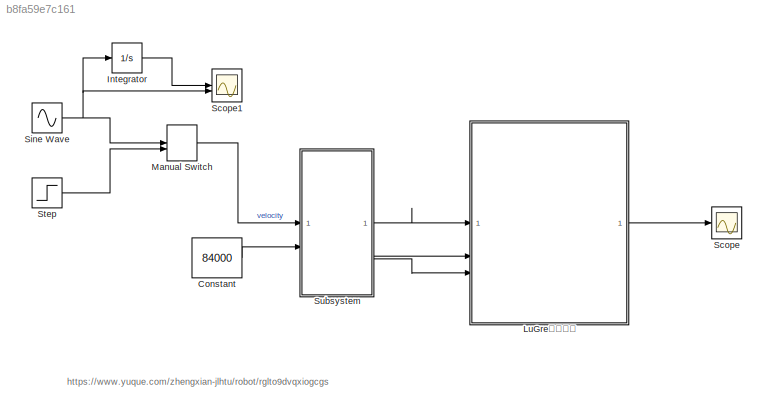
MODEL slx_b8fa59e7c161
KIND model
CONFIG AbsTol = auto
CONFIG EnableMultiTasking = off
CONFIG FixedStep = auto
CONFIG MaxStep = auto
CONFIG MinStep = auto
CONFIG RelTol = 1e-3
CONFIG SampleTimeConstraint = Unconstrained
CONFIG SolverName = VariableStepAuto
CONFIG StartTime = 0.0
CONFIG StopTime = 10.0
BLOCK [Constant] Constant
  Value = 84000
BLOCK [Integrator] Integrator
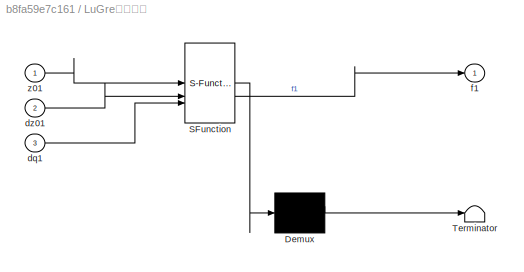
BLOCK [SubSystem] LuGre摩擦模型
  ErrorFcn = Stateflow.Translate.translate
  NameLocation = top
  PermitHierarchicalResolution = ExplicitOnly
  SFBlockType = MATLAB Function
  TreatAsAtomicUnit = on
BLOCK [Demux] LuGre摩擦模型/ Demux 
  Outputs = 1
BLOCK [S-Function] LuGre摩擦模型/ SFunction 
  EnableBusSupport = on
  FunctionName = sf_sfun
  PortCounts = [3 2]
  SFcnIsStateOwnerBlock = off
  SFunctionDeploymentMode = off
  Tag = Stateflow S-Function 7
BLOCK [Terminator] LuGre摩擦模型/ Terminator 
BLOCK [Inport] LuGre摩擦模型/dq1
  Port = 3
BLOCK [Inport] LuGre摩擦模型/dz01
  Port = 2
BLOCK [Outport] LuGre摩擦模型/f1
BLOCK [Inport] LuGre摩擦模型/z01
BLOCK [ManualSwitch] Manual Switch
BLOCK [Scope] Scope
  Floating = off
  NumInputPorts = 1
  ScopeSpecificationString = Simulink.scopes.TimeScopeBlockCfg('CurrentConfiguration', extmgr.ConfigurationSet(extmgr.Configuration('Core','General UI',true),extmgr.Configuration('Core','Source UI',true),extmgr.Configuration('Sources','WiredSimulink',true,'DataLoggingVariableName','ScopeData4'),extmgr.Configuration('Visuals','Time Domain',true,'SerializedDisplays',{struct('MinYLimReal','-5.37377','MaxYLimReal','5.37377','YLab...<+1471ch>
BLOCK [Scope] Scope1
  Floating = off
  NumInputPorts = 2
  ScopeSpecificationString = Simulink.scopes.TimeScopeBlockCfg('CurrentConfiguration', extmgr.ConfigurationSet(extmgr.Configuration('Core','General UI',true),extmgr.Configuration('Core','Source UI',true),extmgr.Configuration('Sources','WiredSimulink',true,'DataLoggingVariableName','ScopeData5'),extmgr.Configuration('Visuals','Time Domain',true,'SerializedDisplays',{struct('MinYLimReal','-1.375','MaxYLimReal','2.375','YLabelRe...<+1429ch>
BLOCK [Sin] Sine Wave
  SampleTime = 0
BLOCK [Step] Step
  SampleTime = 0
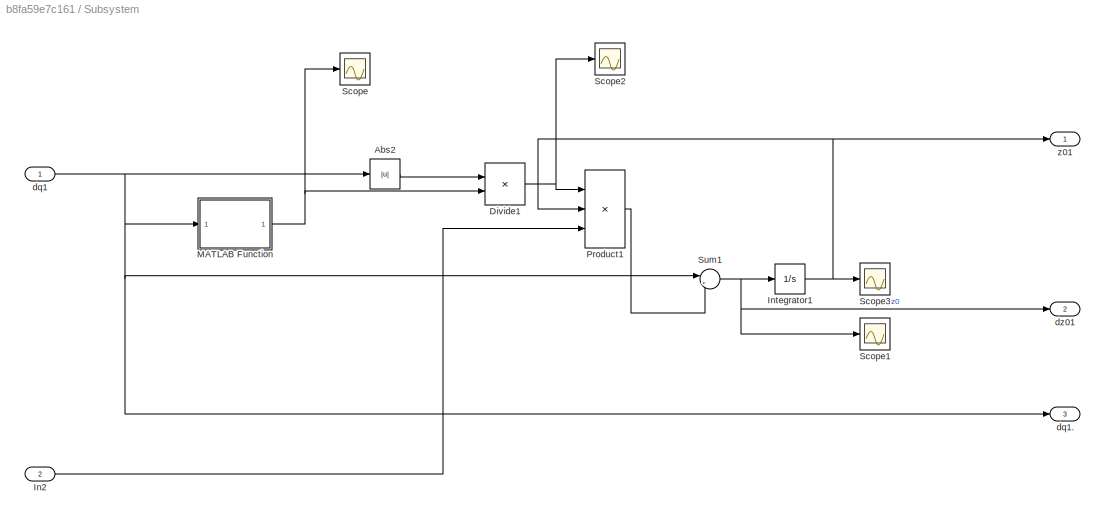
BLOCK [SubSystem] Subsystem
BLOCK [Abs] Subsystem/Abs2
  NameLocation = top
  SaturateOnIntegerOverflow = off
BLOCK [Product] Subsystem/Divide1
  Inputs = */
  NameLocation = top
BLOCK [Inport] Subsystem/In2
  Port = 2
BLOCK [Integrator] Subsystem/Integrator1
  NameLocation = top
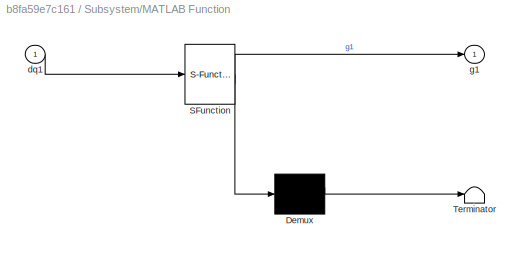
BLOCK [SubSystem] Subsystem/MATLAB Function
  ErrorFcn = Stateflow.Translate.translate
  NameLocation = top
  PermitHierarchicalResolution = ExplicitOnly
  SFBlockType = MATLAB Function
  TreatAsAtomicUnit = on
BLOCK [Demux] Subsystem/MATLAB Function/ Demux 
  Outputs = 1
BLOCK [S-Function] Subsystem/MATLAB Function/ SFunction 
  EnableBusSupport = on
  FunctionName = sf_sfun
  PortCounts = [1 2]
  SFcnIsStateOwnerBlock = off
  SFunctionDeploymentMode = off
  Tag = Stateflow S-Function 8
BLOCK [Terminator] Subsystem/MATLAB Function/ Terminator 
BLOCK [Inport] Subsystem/MATLAB Function/dq1
BLOCK [Outport] Subsystem/MATLAB Function/g1
BLOCK [Product] Subsystem/Product1
  Inputs = 3
  NameLocation = top
BLOCK [Scope] Subsystem/Scope
  Floating = off
  NumInputPorts = 1
  ScopeSpecificationString = Simulink.scopes.TimeScopeBlockCfg('CurrentConfiguration', extmgr.ConfigurationSet(extmgr.Configuration('Core','General UI',true),extmgr.Configuration('Core','Source UI',true),extmgr.Configuration('Sources','WiredSimulink',true,'DataLoggingVariableName','ScopeData1'),extmgr.Configuration('Visuals','Time Domain',true,'SerializedDisplays',{struct('MinYLimReal','3.2775','MaxYLimReal','8.7025','YLabelR...<+1422ch>
BLOCK [Scope] Subsystem/Scope1
  Floating = off
  NameLocation = top
  NumInputPorts = 1
  ScopeSpecificationString = Simulink.scopes.TimeScopeBlockCfg('CurrentConfiguration', extmgr.ConfigurationSet(extmgr.Configuration('Core','General UI',true),extmgr.Configuration('Core','Source UI',true),extmgr.Configuration('Sources','WiredSimulink',true,'DataLoggingVariableName','ScopeData2'),extmgr.Configuration('Visuals','Time Domain',true,'SerializedDisplays',{struct('MinYLimReal','-0.125','MaxYLimReal','1.125','YLabelRe...<+1406ch>
BLOCK [Scope] Subsystem/Scope2
  Floating = off
  NumInputPorts = 1
  ScopeSpecificationString = Simulink.scopes.TimeScopeBlockCfg('CurrentConfiguration', extmgr.ConfigurationSet(extmgr.Configuration('Core','General UI',true),extmgr.Configuration('Core','Source UI',true),extmgr.Configuration('Sources','WiredSimulink',true,'DataLoggingVariableName','ScopeData3'),extmgr.Configuration('Visuals','Time Domain',true,'SerializedDisplays',{struct('MinYLimReal','-0.03272','MaxYLimReal','0.2945','YLabe...<+1441ch>
BLOCK [Scope] Subsystem/Scope3
  Floating = off
  NameLocation = top
  NumInputPorts = 1
  ScopeSpecificationString = Simulink.scopes.TimeScopeBlockCfg('CurrentConfiguration', extmgr.ConfigurationSet(extmgr.Configuration('Core','General UI',true),extmgr.Configuration('Core','Source UI',true),extmgr.Configuration('Sources','WiredSimulink',true),extmgr.Configuration('Visuals','Time Domain',true,'SerializedDisplays',{struct('MinYLimReal','-0.000006','MaxYLimReal','0.000051','YLabelReal','','MinYLimMag','0.000000','M...<+1434ch>
BLOCK [Sum] Subsystem/Sum1
  Inputs = |+-
  NameLocation = top
BLOCK [Inport] Subsystem/dq1
BLOCK [Outport] Subsystem/dq1.
  NameLocation = top
  Port = 3
BLOCK [Outport] Subsystem/dz01
  NameLocation = top
  Port = 2
BLOCK [Outport] Subsystem/z01
  NameLocation = top
ANNOTATION (root): https://www.yuque.com/zhengxian-jlhtu/robot/rglto9dvqxiogcgs
LINE Constant:1 -> Subsystem:2
LINE Integrator:1 -> Scope1:1
LINE LuGre摩擦模型:1 -> Scope:1
LINE Manual Switch:1 -> Subsystem:1
NET Sine Wave:1 -> Integrator:1, Manual Switch:1, Scope1:2
LINE Step:1 -> Manual Switch:2
LINE Subsystem/Abs2:1 -> Subsystem/Divide1:1
NET Subsystem/Divide1:1 -> Subsystem/Product1:1, Subsystem/Scope2:1
LINE Subsystem/In2:1 -> Subsystem/Product1:3
NET Subsystem/Integrator1:1 -> Subsystem/Product1:2, Subsystem/Scope3:1, Subsystem/z01:1
NET Subsystem/MATLAB Function:1 -> Subsystem/Divide1:2, Subsystem/Scope:1
LINE Subsystem/Product1:1 -> Subsystem/Sum1:2
NET Subsystem/Sum1:1 -> Subsystem/Integrator1:1, Subsystem/Scope1:1, Subsystem/dz01:1
NET Subsystem/dq1:1 -> Subsystem/Abs2:1, Subsystem/MATLAB Function:1, Subsystem/Sum1:1, Subsystem/dq1.:1
LINE Subsystem:1 -> LuGre摩擦模型:1
LINE Subsystem:2 -> LuGre摩擦模型:2
LINE Subsystem:3 -> LuGre摩擦模型:3
note: NET lines group one-source signal fan-out (src -> all destinations, sorted); 1:1 wires keep LINE
CHART LuGre摩擦模型 states=1 transitions=1
  STATE_LABEL 'eML_blk_kernel()'
  STATE_LABEL 'SCRIPT:\nfunction f1  = fcn(z01,dz01,dq1)\nxite0 = 84000;\nxite1 = 260;\nxite2 = 28;\nFc = 3.82;\nFs = 8.16;\ndqs = 0.0125;\nlamda = 0.1;\n\nf1 = lamda * (xite0 * z01 + xite1 * dz01 + xite2 * dq1);\n'
CHART Subsystem/MATLAB Function states=1 transitions=1
  STATE_LABEL 'eML_blk_kernel()'
  STATE_LABEL 'SCRIPT:\nfunction g1 = fcn(dq1)\nxite1 = 260;\nxite2 = 28;\nFc = 3.82;\nFs = 8.16;\ndqs = 0.0125;\n\ng1 = Fc + (Fs-Fc)*exp(-(dq1/dqs)^2);\n\n'
CHART  states=0 transitions=0
CHART  states=0 transitions=0
